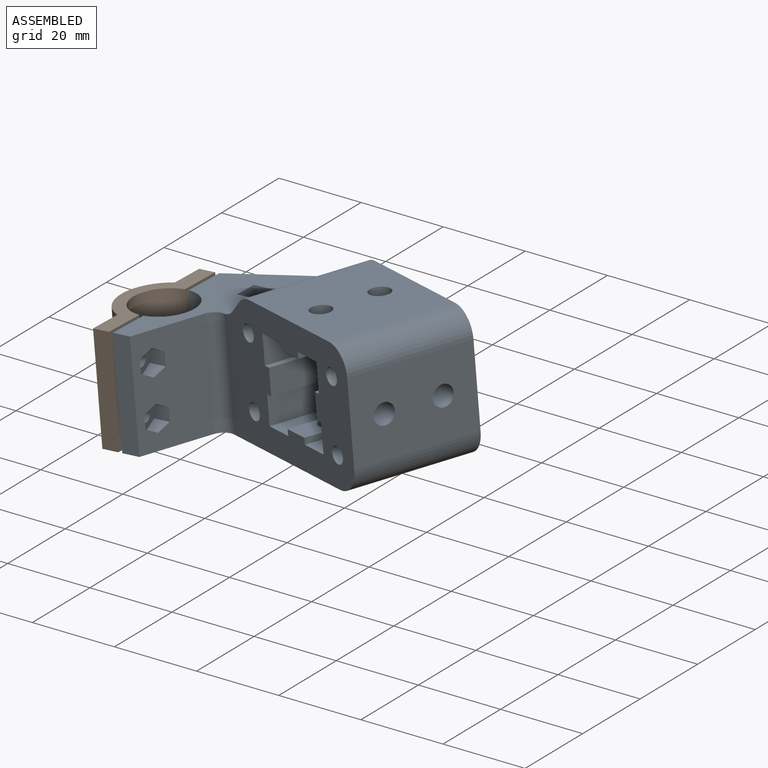
[diagram: assembled view]
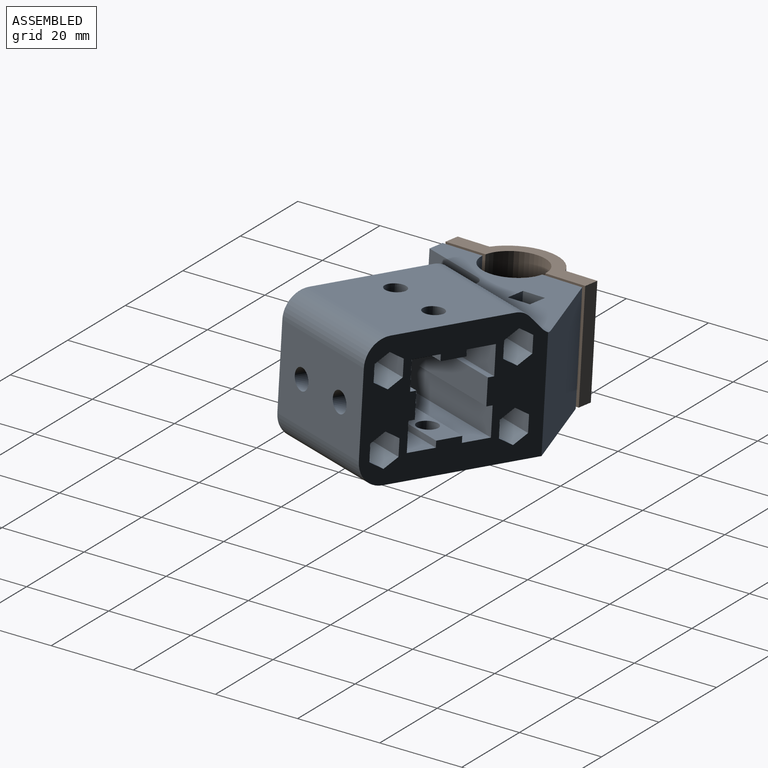
[diagram: assembled view, second angle]
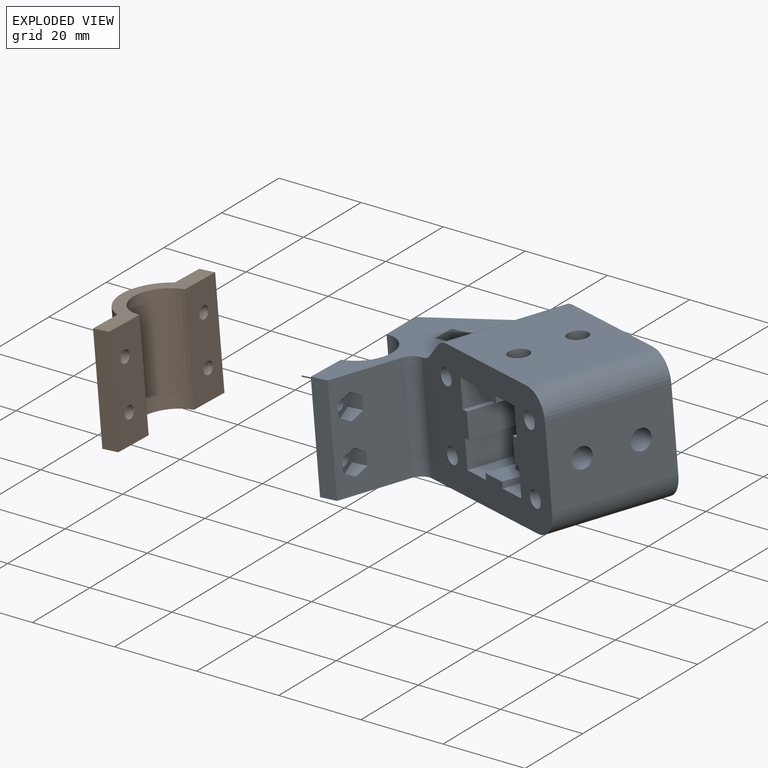
[diagram: exploded view]
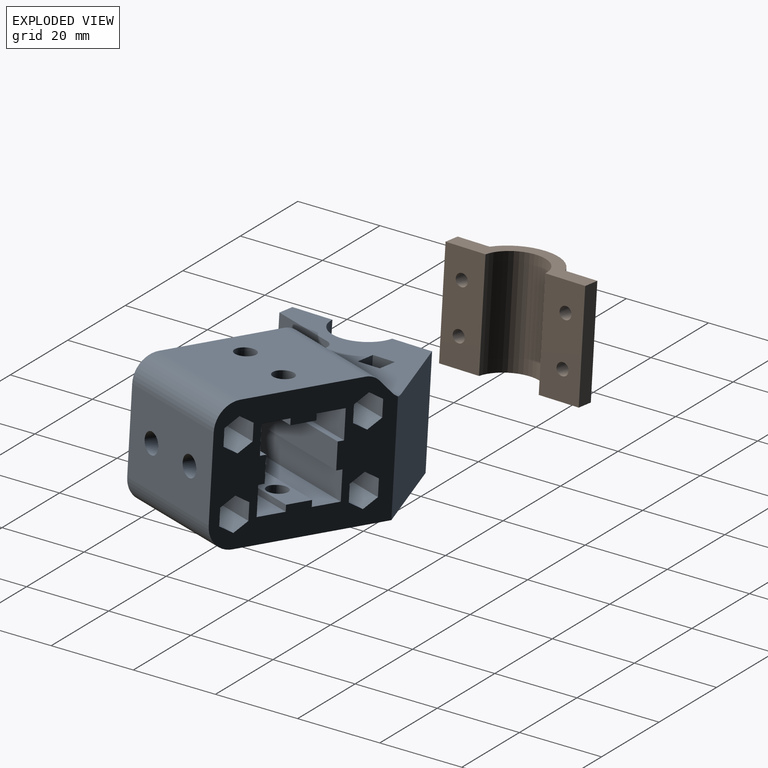
[diagram: exploded view, second angle]
ASSEMBLY  parts=2 mates=3
PART A: 112 faces, bbox 64.3x52.1x32 mm
  f0: cylinder r=2mm len=18.75mm, axis (0,1,0), area 235.6mm2, adj f35,f111
  f1: cylinder r=2mm len=18.75mm, axis (0,1,0), area 235.6mm2, adj f35,f110
  f2: cylinder r=2mm len=18.75mm, axis (0,1,0), area 235.6mm2, adj f35,f109
  f3: plane 26x17.61mm, normal (1,0,0), area 402.5mm2, adj f5,f6,f40,f92,f93,f94,f95,f96
  f4: plane 43.79x32mm, normal (0,1,0), area 838.2mm2, adj f6,f7,f8,f9,f10,f11,f12,f13
  f5: plane 50.15x18.46mm, normal (0,0,1), area 406mm2, adj f3,f33,f37,f38,f39,f40,f51,f52
  f6: plane 58.32x52.08mm, normal (0,0,-1), area 1581.9mm2, adj f3,f4,f27,f35,f36,f37,f38,f39
  f7: plane 30x29.71mm, normal (0,0,1), area 852.2mm2, adj f4,f28,f35,f57,f58,f106
  f8: plane 30x6.9mm, normal (0,0,1), area 207mm2, adj f4,f9,f31,f35
  f9: plane 30x1.5mm, normal (1,0,0), area 45mm2, adj f4,f8,f10,f35
  f10: plane 30x6.2mm, normal (0,0,1), area 146.7mm2, adj f4,f9,f11,f35,f59,f60
  f11: plane 30x1.5mm, normal (-1,0,0), area 45mm2, adj f4,f10,f12,f35
  f12: plane 30x6.9mm, normal (0,0,1), area 207mm2, adj f4,f11,f13,f35
  f13: plane 30x6.9mm, normal (1,0,0), area 207mm2, adj f4,f12,f14,f35
  f14: plane 30x1.5mm, normal (0,0,-1), area 45mm2, adj f4,f13,f15,f35
  f15: plane 30x6.2mm, normal (1,0,0), area 186mm2, adj f4,f14,f16,f35
  f16: plane 30x1.5mm, normal (0,0,1), area 45mm2, adj f4,f15,f17,f35
  f17: plane 30x6.9mm, normal (1,0,0), area 207mm2, adj f4,f16,f18,f35
  f18: plane 30x6.9mm, normal (0,0,-1), area 207mm2, adj f4,f17,f19,f35
  f19: plane 30x1.5mm, normal (-1,0,0), area 45mm2, adj f4,f18,f20,f35
  f20: plane 30x6.2mm, normal (0,0,-1), area 146.7mm2, adj f4,f19,f21,f35,f57,f58
  f21: plane 30x1.5mm, normal (1,0,0), area 45mm2, adj f4,f20,f22,f35
  f22: plane 30x6.9mm, normal (0,0,-1), area 207mm2, adj f4,f21,f23,f35
  f23: plane 30x6.9mm, normal (-1,0,0), area 207mm2, adj f4,f22,f24,f35
  f24: plane 30x1.5mm, normal (0,0,1), area 45mm2, adj f4,f23,f25,f35
  f25: plane 30x6.2mm, normal (-1,0,0), area 146.7mm2, adj f4,f24,f26,f35,f61,f62
  f26: plane 30x1.5mm, normal (0,0,-1), area 45mm2, adj f4,f25,f31,f35
  f27: cylinder r=6mm len=30mm, axis (0,1,0), area 282.7mm2, adj f4,f6,f32,f35
  f28: cylinder r=6mm len=30mm, axis (0,1,0), area 282.7mm2, adj f4,f7,f32,f35
  f29: plane 30x3.07mm, normal (-0.71,0,0.71), area 130.3mm2, adj f4,f35,f106,f107
  f30: cylinder r=2mm len=18.75mm, axis (0,1,0), area 235.6mm2, adj f35,f108
  f31: plane 30x6.9mm, normal (-1,0,0), area 207mm2, adj f4,f8,f26,f35
  f32: plane 30x20mm, normal (1,0,0), area 560.7mm2, adj f4,f27,f28,f35,f61,f62
  f33: cylinder r=7.5mm len=24mm, axis (0,0,1), area 541.5mm2, adj f5,f34,f37,f39
  f34: plane 14.36x9.59mm, normal (0,0,1), area 21mm2, adj f33,f36,f37,f39
  f35: plane 45.3x32mm, normal (0,-1,0), area 994mm2, adj f0,f1,f2,f6,f7,f8,f9,f10
  f36: cylinder r=6.5mm len=12.42mm, axis (0,0,1), area 38.8mm2, adj f6,f34,f37,f39
  f37: plane 26x10.35mm, normal (-0.94,-0.34,0), area 248.3mm2, adj f5,f6,f33,f34,f36,f38,f43,f44
  f38: plane 26.45x20.53mm, normal (-0.68,0.73,0), area 731.2mm2, adj f4,f5,f6,f37,f107
  f39: plane 26x10.35mm, normal (-0.94,-0.34,0), area 248.3mm2, adj f5,f6,f33,f34,f36,f40,f41,f42
  f40: plane 26x4.05mm, normal (0.34,-0.94,0), area 111.9mm2, adj f3,f5,f6,f39
  f41: cylinder r=1.5mm len=3.85mm, axis (-0.94,-0.34,0), area 28.3mm2, adj f39,f98
  f42: cylinder r=1.5mm len=3.85mm, axis (-0.94,-0.34,0), area 28.3mm2, adj f39,f91
  f43: cylinder r=1.5mm len=10.42mm, axis (-0.94,-0.34,0), area 94.2mm2, adj f37,f56
  f44: cylinder r=1.5mm len=10.42mm, axis (-0.94,-0.34,0), area 94.2mm2, adj f37,f50
  f45: plane 8.57x4.7mm, normal (0.34,-0.94,0), area 42.8mm2, adj f6,f48,f49,f50
  f46: plane 8.57x4.7mm, normal (-0.34,0.94,0), area 42.8mm2, adj f6,f47,f49,f50
  f47: plane 5.63x4.26mm, normal (-0.17,0.47,-0.87), area 15.7mm2, adj f46,f48,f49,f50
  f48: plane 5.63x4.26mm, normal (0.17,-0.47,-0.87), area 15.7mm2, adj f45,f47,f49,f50
  f49: plane 10.14x5.1mm, normal (-0.94,-0.34,0), area 50.8mm2, adj f6,f45,f46,f47,f48
  f50: plane 10.14x5.1mm, normal (0.94,0.34,0), area 43.7mm2, adj f6,f44,f45,f46,f47,f48
  f51: plane 8.6x4.7mm, normal (-0.34,0.94,0), area 43mm2, adj f5,f54,f55,f56
  f52: plane 8.6x4.7mm, normal (0.34,-0.94,0), area 43mm2, adj f5,f53,f55,f56
  f53: plane 5.64x4.31mm, normal (0.17,-0.47,0.87), area 16mm2, adj f52,f54,f55,f56
  f54: plane 5.64x4.31mm, normal (-0.17,0.47,0.87), area 16mm2, adj f51,f53,f55,f56
  f55: plane 10.19x5.2mm, normal (-0.94,-0.34,0), area 52mm2, adj f5,f51,f52,f53,f54
  f56: plane 10.19x5.2mm, normal (0.94,0.34,0), area 44.9mm2, adj f5,f43,f51,f52,f53,f54
  f57: cylinder r=2.5mm len=7.5mm, axis (0,0,1), area 117.8mm2, adj f7,f20
  f58: cylinder r=2.5mm len=7.5mm, axis (0,0,1), area 117.8mm2, adj f7,f20
  f59: cylinder r=2.5mm len=7.5mm, axis (0,0,1), area 117.8mm2, adj f6,f10
  f60: cylinder r=2.5mm len=7.5mm, axis (0,0,1), area 117.8mm2, adj f6,f10
  f61: cylinder r=2.5mm len=12.9mm, axis (1,0,0), area 202.6mm2, adj f25,f32
  f62: cylinder r=2.5mm len=12.9mm, axis (1,0,0), area 202.6mm2, adj f25,f32
  f63: plane 11x3.47mm, normal (-0.5,0,-0.87), area 44mm2, adj f4,f64,f68,f69
  f64: plane 11x4mm, normal (-1,0,0), area 44mm2, adj f4,f63,f65,f69
  f65: plane 11x3.47mm, normal (-0.5,0,0.87), area 44mm2, adj f4,f64,f66,f69
  f66: plane 11x3.47mm, normal (0.5,0,0.87), area 44mm2, adj f4,f65,f67,f69
  f67: plane 11x4mm, normal (1,0,0), area 44mm2, adj f4,f66,f68,f69
  f68: plane 11x3.47mm, normal (0.5,0,-0.87), area 44mm2, adj f4,f63,f67,f69
  f69: plane 8x6.93mm, normal (0,1,0), area 41.6mm2, adj f63,f64,f65,f66,f67,f68
  f70: plane 11x3.47mm, normal (-0.5,0,-0.87), area 44mm2, adj f4,f71,f75,f76
  f71: plane 11x4mm, normal (-1,0,0), area 44mm2, adj f4,f70,f72,f76
  f72: plane 11x3.47mm, normal (-0.5,0,0.87), area 44mm2, adj f4,f71,f73,f76
  f73: plane 11x3.47mm, normal (0.5,0,0.87), area 44mm2, adj f4,f72,f74,f76
  f74: plane 11x4mm, normal (1,0,0), area 44mm2, adj f4,f73,f75,f76
  f75: plane 11x3.47mm, normal (0.5,0,-0.87), area 44mm2, adj f4,f70,f74,f76
  f76: plane 8x6.93mm, normal (0,1,0), area 41.6mm2, adj f70,f71,f72,f73,f74,f75
  f77: plane 11x3.47mm, normal (-0.5,0,-0.87), area 44mm2, adj f4,f78,f82,f83
  f78: plane 11x4mm, normal (-1,0,0), area 44mm2, adj f4,f77,f79,f83
  f79: plane 11x3.47mm, normal (-0.5,0,0.87), area 44mm2, adj f4,f78,f80,f83
  f80: plane 11x3.47mm, normal (0.5,0,0.87), area 44mm2, adj f4,f79,f81,f83
  f81: plane 11x4mm, normal (1,0,0), area 44mm2, adj f4,f80,f82,f83
  f82: plane 11x3.47mm, normal (0.5,0,-0.87), area 44mm2, adj f4,f77,f81,f83
  f83: plane 8x6.93mm, normal (0,1,0), area 41.6mm2, adj f77,f78,f79,f80,f81,f82
  f84: plane 11x4mm, normal (-1,0,0), area 44mm2, adj f4,f85,f89,f90
  f85: plane 11x3.47mm, normal (-0.5,0,0.87), area 44mm2, adj f4,f84,f86,f90
  f86: plane 11x3.47mm, normal (0.5,0,0.87), area 44mm2, adj f4,f85,f87,f90
  f87: plane 11x4mm, normal (1,0,0), area 44mm2, adj f4,f86,f88,f90
  f88: plane 11x3.47mm, normal (0.5,0,-0.87), area 44mm2, adj f4,f87,f89,f90
  f89: plane 11x3.47mm, normal (-0.5,0,-0.87), area 44mm2, adj f4,f84,f88,f90
  f90: plane 8x6.93mm, normal (0,1,0), area 41.6mm2, adj f84,f85,f86,f87,f88,f89
  f91: plane 6.39x5.2mm, normal (0.94,0.34,0), area 19.4mm2, adj f42,f92,f93,f94,f95,f96,f97
  f92: plane 3.95x3.71mm, normal (0.17,-0.47,-0.87), area 11mm2, adj f3,f91,f93,f97
  f93: plane 3.71x3.19mm, normal (0.34,-0.94,0), area 12.6mm2, adj f3,f91,f92,f94
  f94: plane 3.95x3.71mm, normal (0.17,-0.47,0.87), area 11mm2, adj f3,f91,f93,f95
  f95: plane 3.61x2.77mm, normal (-0.17,0.47,0.87), area 7.8mm2, adj f3,f91,f94,f96
  f96: plane 3.19x1.82mm, normal (-0.34,0.94,0), area 6.2mm2, adj f3,f91,f95,f97
  f97: plane 3.61x2.77mm, normal (-0.17,0.47,-0.87), area 7.8mm2, adj f3,f91,f92,f96
  f98: plane 6.27x5.1mm, normal (0.94,0.34,0), area 18.5mm2, adj f41,f99,f100,f101,f102,f103,f104
  f99: plane 3.69x3.14mm, normal (0.34,-0.94,0), area 12.3mm2, adj f3,f98,f100,f104
  f100: plane 3.9x3.69mm, normal (0.17,-0.47,0.87), area 10.8mm2, adj f3,f98,f99,f101
  f101: plane 3.56x2.77mm, normal (-0.17,0.47,0.87), area 7.7mm2, adj f3,f98,f100,f102
  f102: plane 3.14x1.84mm, normal (-0.34,0.94,0), area 6.1mm2, adj f3,f98,f101,f103
  f103: plane 3.56x2.77mm, normal (-0.17,0.47,-0.87), area 7.7mm2, adj f3,f98,f102,f104
  f104: plane 3.9x3.69mm, normal (0.17,-0.47,-0.87), area 10.8mm2, adj f3,f98,f99,f103
  f105: cylinder r=3mm len=26.03mm, axis (0,0,-1), area 122.5mm2, adj f3,f5,f6,f35,f107
  f106: cylinder r=5mm len=30mm, axis (0,1,0), area 117.8mm2, adj f4,f7,f29,f35
  f107: cylinder r=5mm len=30.05mm, axis (0,1,0), area 115.8mm2, adj f4,f5,f29,f35,f38,f105
  f108: plane 4x4mm, normal (0,-1,0), area 12.6mm2, adj f30
  f109: plane 4x4mm, normal (0,-1,0), area 12.6mm2, adj f2
  f110: plane 4x4mm, normal (0,-1,0), area 12.6mm2, adj f1
  f111: plane 4x4mm, normal (0,-1,0), area 12.6mm2, adj f0
PART B: 14 faces, bbox 35x26x10 mm
  f0: plane 26x10.02mm, normal (0,0,1), area 246.3mm2, adj f1,f7,f8,f9,f10,f11
  f1: cylinder r=7.5mm len=26mm, axis (0,1,0), area 586.6mm2, adj f0,f2,f8,f9
  f2: plane 26x10.02mm, normal (0,0,1), area 246.3mm2, adj f1,f3,f8,f9,f12,f13
  f3: plane 26x4mm, normal (-1,0,0), area 104mm2, adj f2,f4,f8,f9
  f4: plane 26x8.01mm, normal (0,0,-1), area 194.2mm2, adj f3,f5,f8,f9,f12,f13
  f5: cylinder r=10.5mm len=26mm, axis (0,1,0), area 615.8mm2, adj f4,f6,f8,f9
  f6: plane 26x8.01mm, normal (0,0,-1), area 194.2mm2, adj f5,f7,f8,f9,f10,f11
  f7: plane 26x4mm, normal (1,0,0), area 104mm2, adj f0,f6,f8,f9
  f8: plane 35x10mm, normal (0,-1,0), area 140.8mm2, adj f0,f1,f2,f3,f4,f5,f6,f7
  f9: plane 35x10mm, normal (0,1,0), area 140.8mm2, adj f0,f1,f2,f3,f4,f5,f6,f7
  f10: cylinder r=1.5mm len=4mm, axis (0,0,1), area 37.7mm2, adj f0,f6
  f11: cylinder r=1.5mm len=4mm, axis (0,0,1), area 37.7mm2, adj f0,f6
  f12: cylinder r=1.5mm len=4mm, axis (0,0,1), area 37.7mm2, adj f2,f4
  f13: cylinder r=1.5mm len=4mm, axis (0,0,1), area 37.7mm2, adj f2,f4
PLACE A rot(axis=(0.04,-0.22,-0.98),22.8deg) t=(-54.17,-6.18,-4.86)mm
PLACE B rot(axis=(-0.54,0.57,-0.62),118.4deg) t=(-88.39,7.98,-10.86)mm
MATE slider A.f44 <-> B.f12  axis (-1,0.04,-0.09) through (-86.86,20.95,-16.75)mm
MATE slider B.f13 <-> A.f43  axis (-1,0.04,-0.09) through (-92.89,21.14,-5.23)mm
MATE parallel A.f37 <-> B.f2  axis (-1,0.04,-0.09) through (-87.4,20.37,-10.87)mm
